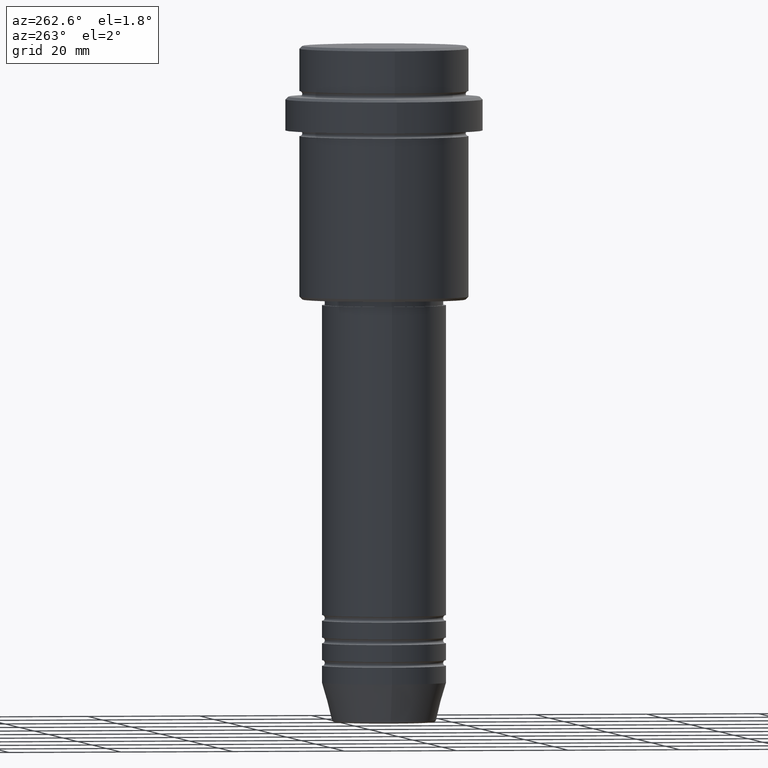
[diagram: clean part render]
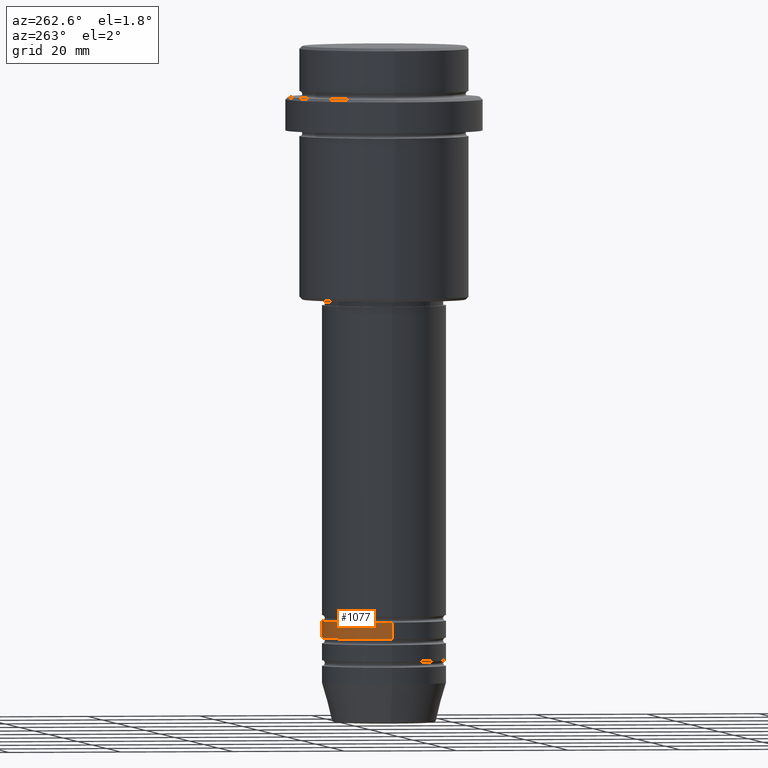
[diagram: same view with one face highlighted and labeled with its STEP entity id]
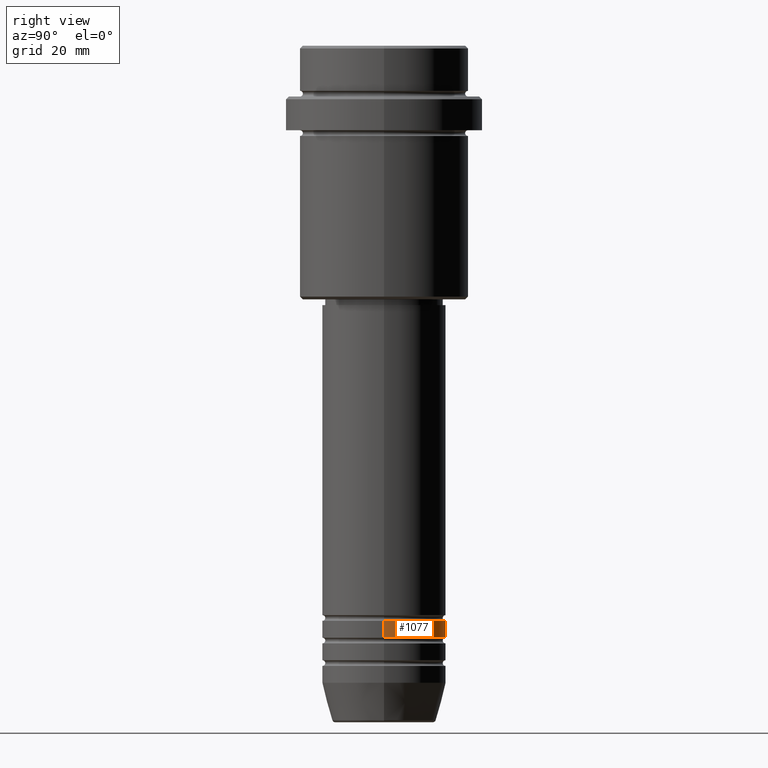
[diagram: same view with one face highlighted and labeled with its STEP entity id]
A machine part, auxiliary view. The second image highlights one B-rep face of the part: STEP entity #1077.
A second angle (right view) of the same face is appended — the face is thin or edge-on in the first view.
In plain terms, the highlighted cylindrical surface (partial cylindrical patch) has radius 11 mm, axis along (-0, -0, 1).
Its self-contained STEP definition (entity closure, byte-faithful):
#28 = VERTEX_POINT ( 'NONE', #1275 ) ;
#112 = VERTEX_POINT ( 'NONE', #451 ) ;
#132 = EDGE_CURVE ( 'NONE', #1259, #112, #321, .T. ) ;
#213 = DIRECTION ( 'NONE',  ( -0.000000000000000000, -0.000000000000000000, 1.000000000000000000 ) ) ;
#321 = CIRCLE ( 'NONE', #1190, 11.00000000000000000 ) ;
#339 = FACE_OUTER_BOUND ( 'NONE', #583, .T. ) ;
#389 = VECTOR ( 'NONE', #1297, 1000.000000000000000 ) ;
#451 = CARTESIAN_POINT ( 'NONE',  ( -11.00000000000000000, 1.347111479062088405E-15, -104.9999999999998721 ) ) ;
#456 = VERTEX_POINT ( 'NONE', #512 ) ;
#509 = CARTESIAN_POINT ( 'NONE',  ( 11.00000000000000000, 0.000000000000000000, -104.9999999999998721 ) ) ;
#512 = CARTESIAN_POINT ( 'NONE',  ( 11.00000000000000000, 0.000000000000000000, -101.9999999999998721 ) ) ;
#518 = LINE ( 'NONE', #858, #389 ) ;
#555 = ORIENTED_EDGE ( 'NONE', *, *, #1022, .F. ) ;
#583 = EDGE_LOOP ( 'NONE', ( #870, #698, #768, #555 ) ) ;
#597 = DIRECTION ( 'NONE',  ( 1.000000000000000000, 0.000000000000000000, 0.000000000000000000 ) ) ;
#633 = DIRECTION ( 'NONE',  ( 1.000000000000000000, 0.000000000000000000, 0.000000000000000000 ) ) ;
#698 = ORIENTED_EDGE ( 'NONE', *, *, #1226, .T. ) ;
#711 = CIRCLE ( 'NONE', #784, 11.00000000000000000 ) ;
#768 = ORIENTED_EDGE ( 'NONE', *, *, #905, .F. ) ;
#784 = AXIS2_PLACEMENT_3D ( 'NONE', #1152, #947, #597 ) ;
#857 = DIRECTION ( 'NONE',  ( -0.000000000000000000, -0.000000000000000000, 1.000000000000000000 ) ) ;
#858 = CARTESIAN_POINT ( 'NONE',  ( 11.00000000000000000, 0.000000000000000000, 0.000000000000000000 ) ) ;
#870 = ORIENTED_EDGE ( 'NONE', *, *, #132, .T. ) ;
#872 = CYLINDRICAL_SURFACE ( 'NONE', #1357, 11.00000000000000000 ) ;
#884 = DIRECTION ( 'NONE',  ( -0.000000000000000000, -0.000000000000000000, 1.000000000000000000 ) ) ;
#905 = EDGE_CURVE ( 'NONE', #456, #28, #711, .T. ) ;
#947 = DIRECTION ( 'NONE',  ( -0.000000000000000000, -0.000000000000000000, 1.000000000000000000 ) ) ;
#1022 = EDGE_CURVE ( 'NONE', #1259, #456, #518, .T. ) ;
#1077 = ADVANCED_FACE ( 'NONE', ( #339 ), #872, .T. ) ;
#1090 = CARTESIAN_POINT ( 'NONE',  ( -11.00000000000000000, 1.347111479062088405E-15, 0.000000000000000000 ) ) ;
#1152 = CARTESIAN_POINT ( 'NONE',  ( 0.000000000000000000, 0.000000000000000000, -101.9999999999998721 ) ) ;
#1190 = AXIS2_PLACEMENT_3D ( 'NONE', #1417, #884, #1336 ) ;
#1191 = LINE ( 'NONE', #1090, #1338 ) ;
#1192 = CARTESIAN_POINT ( 'NONE',  ( 0.000000000000000000, 0.000000000000000000, 0.000000000000000000 ) ) ;
#1226 = EDGE_CURVE ( 'NONE', #112, #28, #1191, .T. ) ;
#1259 = VERTEX_POINT ( 'NONE', #509 ) ;
#1275 = CARTESIAN_POINT ( 'NONE',  ( -11.00000000000000000, 1.347111479062088405E-15, -101.9999999999998721 ) ) ;
#1297 = DIRECTION ( 'NONE',  ( -0.000000000000000000, -0.000000000000000000, 1.000000000000000000 ) ) ;
#1336 = DIRECTION ( 'NONE',  ( 1.000000000000000000, 0.000000000000000000, 0.000000000000000000 ) ) ;
#1338 = VECTOR ( 'NONE', #857, 1000.000000000000000 ) ;
#1357 = AXIS2_PLACEMENT_3D ( 'NONE', #1192, #213, #633 ) ;
#1417 = CARTESIAN_POINT ( 'NONE',  ( 0.000000000000000000, 0.000000000000000000, -104.9999999999998721 ) ) ;